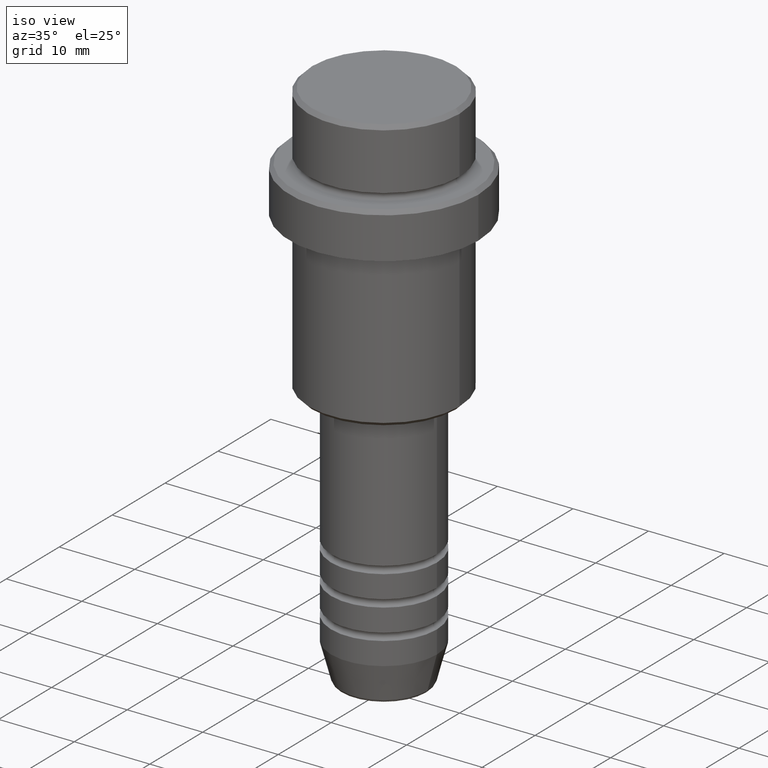
[diagram: clean part render]
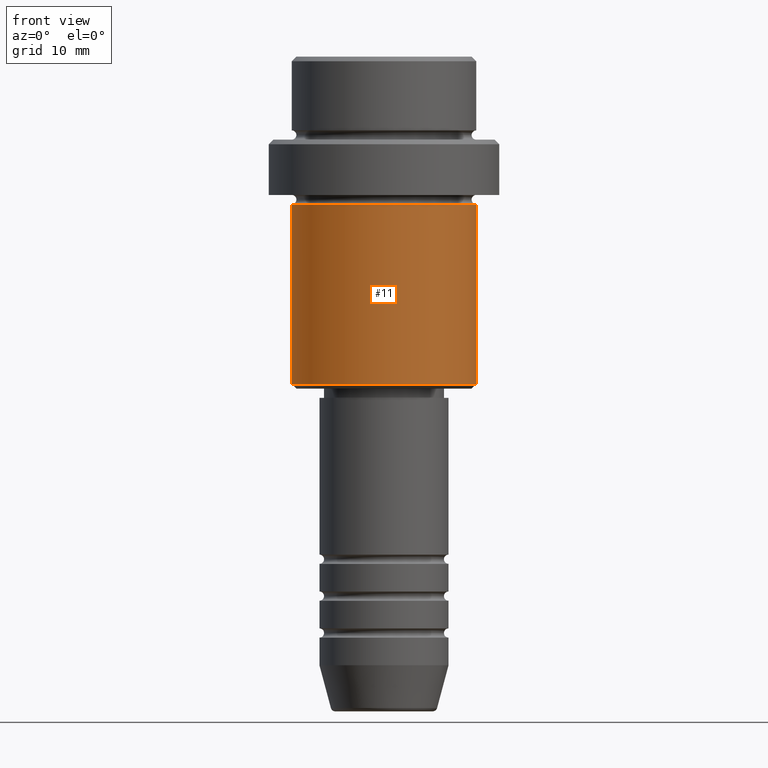
[diagram: tour spotlight — one face highlighted and labeled with its STEP entity id]
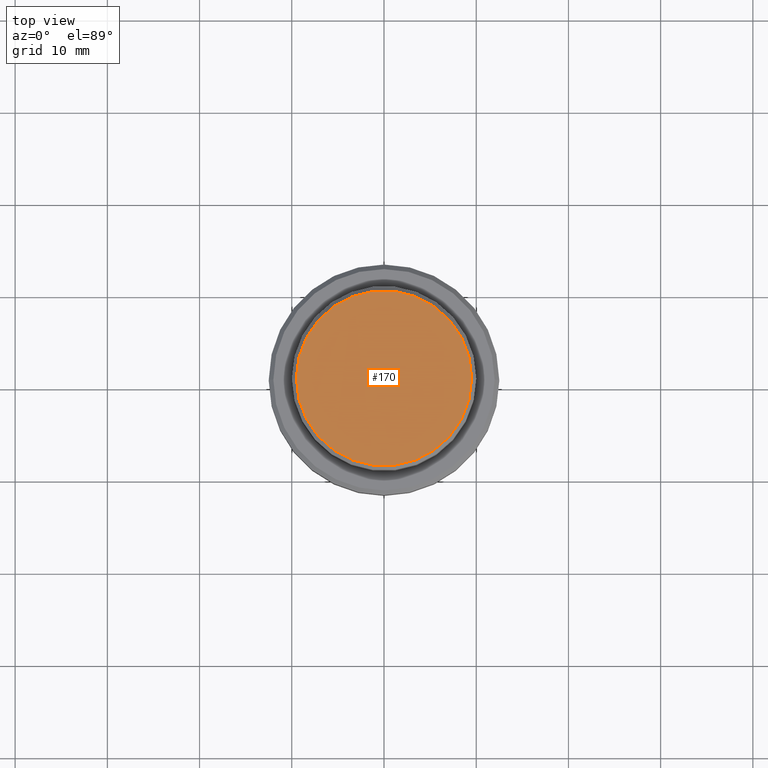
[diagram: tour spotlight — one face highlighted and labeled with its STEP entity id]
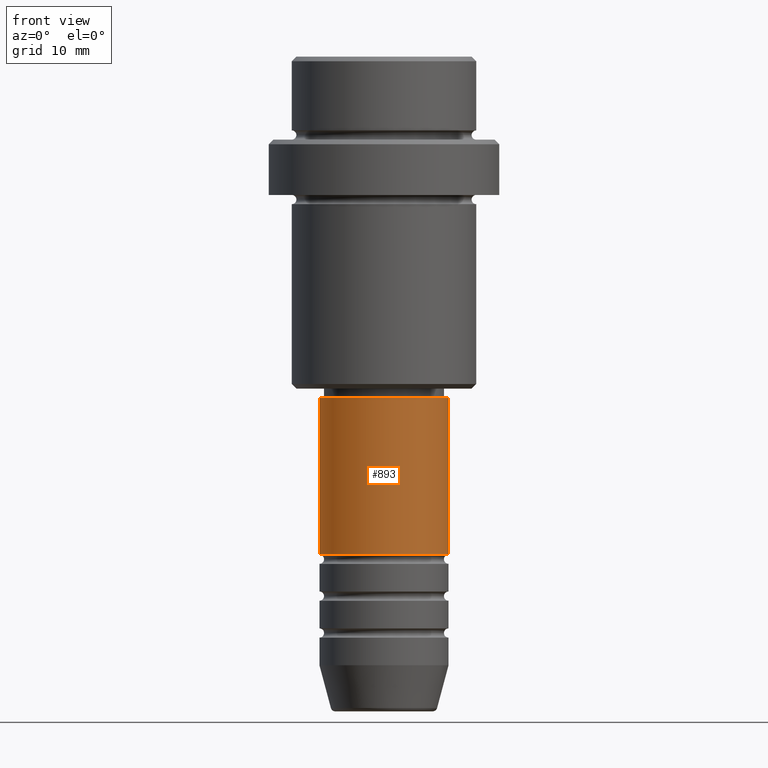
[diagram: tour spotlight — one face highlighted and labeled with its STEP entity id]
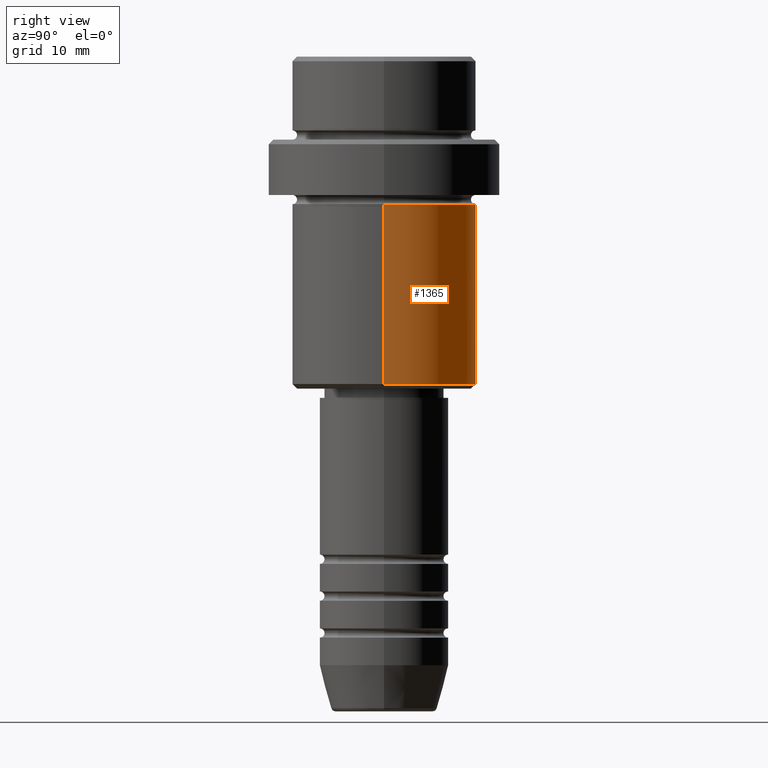
[diagram: tour spotlight — one face highlighted and labeled with its STEP entity id]
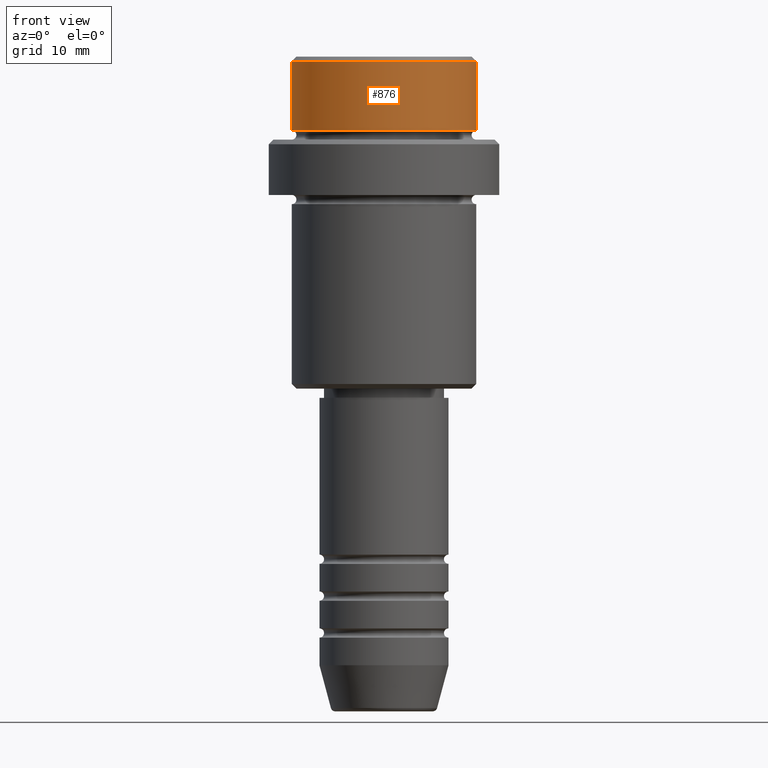
[diagram: tour spotlight — one face highlighted and labeled with its STEP entity id]
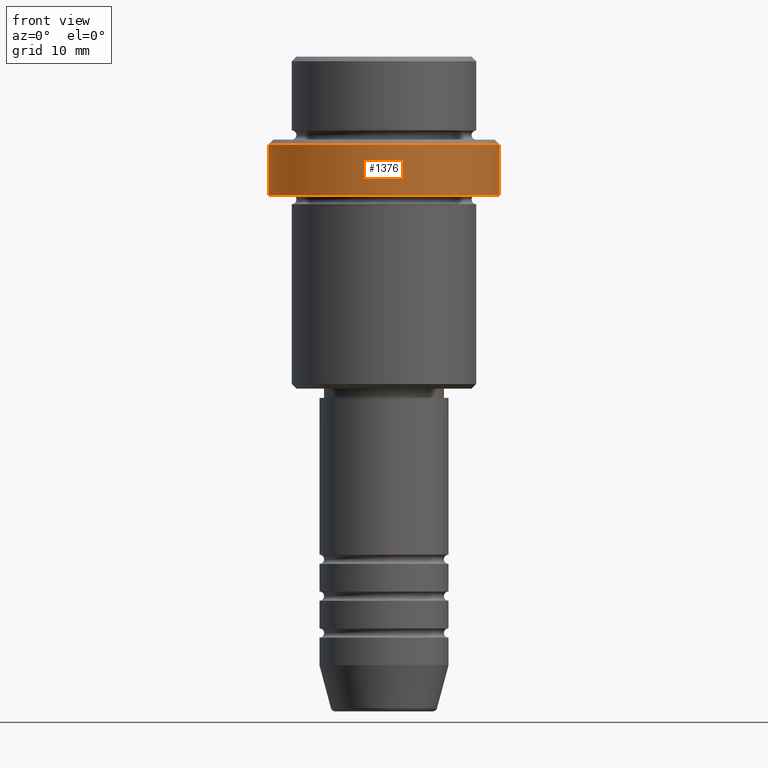
[diagram: tour spotlight — one face highlighted and labeled with its STEP entity id]
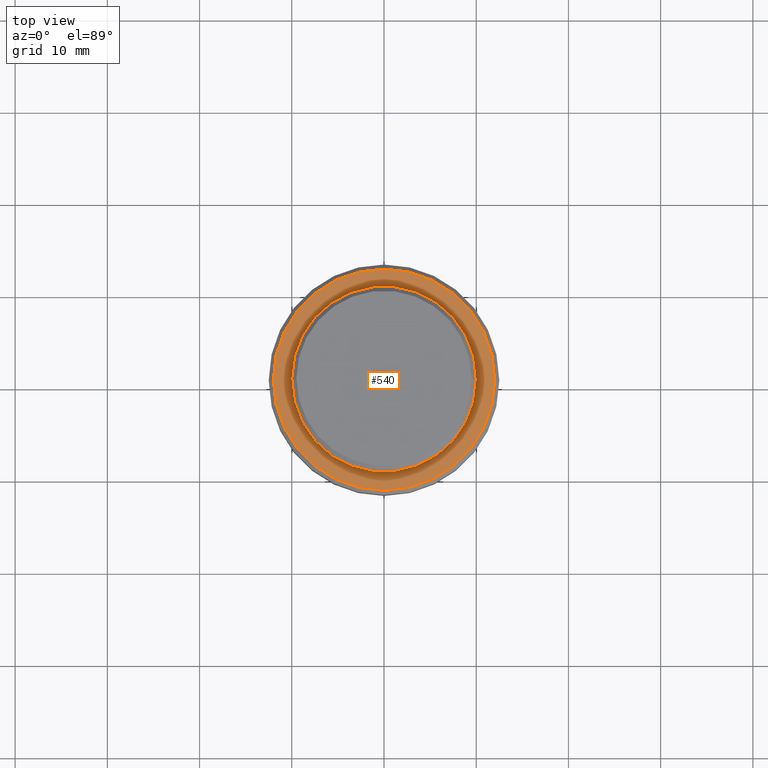
[diagram: tour spotlight — one face highlighted and labeled with its STEP entity id]
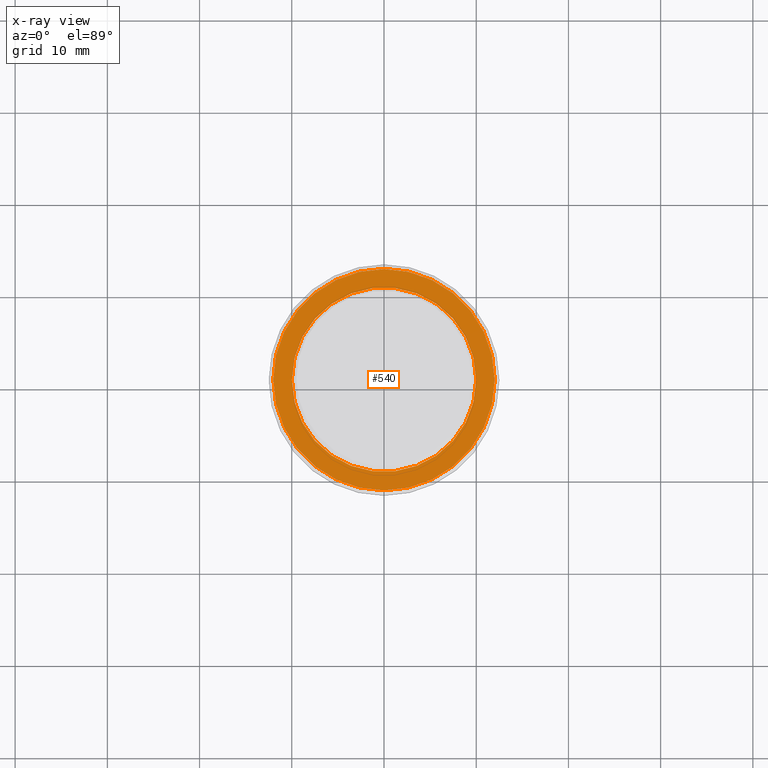
[diagram: x-ray of the same camera — body ghosted, this tour face saturated]
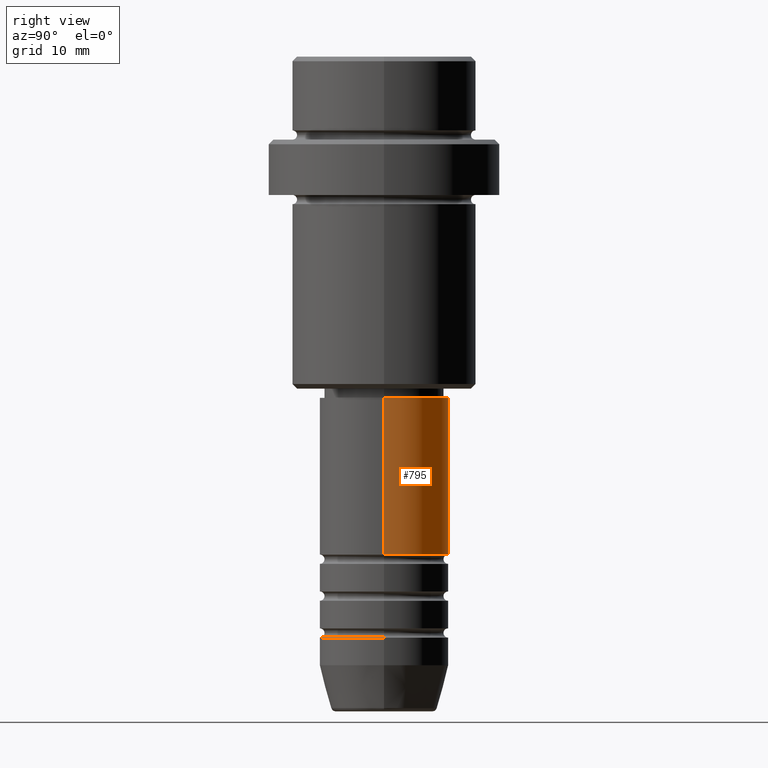
[diagram: tour spotlight — one face highlighted and labeled with its STEP entity id]
A machine part: a face-by-face anatomy tour. The part has 52 B-rep faces; the first image is the clean iso view, then the 8 largest visible faces are spotlighted one at a time (largest first), each with its STEP entity span.

Face 1 — front view, entity #11. In plain terms, the highlighted cylindrical surface (partial cylindrical patch) has radius 10 mm, axis along (-0, -0, 1).
Definition (entity closure, byte-faithful):
#11 = ADVANCED_FACE ( 'NONE', ( #933 ), #820, .T. ) ;
#33 = EDGE_CURVE ( 'NONE', #1302, #1058, #84, .T. ) ;
#84 = LINE ( 'NONE', #410, #741 ) ;
#130 = CARTESIAN_POINT ( 'NONE',  ( -10.00000000000000000, 1.224646799147353256E-15, -35.50000000000000711 ) ) ;
#183 = DIRECTION ( 'NONE',  ( -0.000000000000000000, -0.000000000000000000, 1.000000000000000000 ) ) ;
#186 = CARTESIAN_POINT ( 'NONE',  ( 10.00000000000000000, 0.000000000000000000, -35.50000000000000711 ) ) ;
#203 = LINE ( 'NONE', #641, #833 ) ;
#253 = VERTEX_POINT ( 'NONE', #130 ) ;
#299 = DIRECTION ( 'NONE',  ( -1.000000000000000000, 0.000000000000000000, 0.000000000000000000 ) ) ;
#304 = DIRECTION ( 'NONE',  ( -0.000000000000000000, -0.000000000000000000, 1.000000000000000000 ) ) ;
#395 = AXIS2_PLACEMENT_3D ( 'NONE', #720, #1266, #958 ) ;
#409 = CARTESIAN_POINT ( 'NONE',  ( 0.000000000000000000, 0.000000000000000000, -35.50000000000000711 ) ) ;
#410 = CARTESIAN_POINT ( 'NONE',  ( 10.00000000000000000, 0.000000000000000000, 0.000000000000000000 ) ) ;
#435 = ORIENTED_EDGE ( 'NONE', *, *, #602, .T. ) ;
#527 = DIRECTION ( 'NONE',  ( -0.000000000000000000, -0.000000000000000000, 1.000000000000000000 ) ) ;
#573 = ORIENTED_EDGE ( 'NONE', *, *, #1024, .F. ) ;
#602 = EDGE_CURVE ( 'NONE', #253, #1302, #1269, .T. ) ;
#629 = CARTESIAN_POINT ( 'NONE',  ( 10.00000000000000000, 0.000000000000000000, -16.00000000000000000 ) ) ;
#641 = CARTESIAN_POINT ( 'NONE',  ( -10.00000000000000000, 1.224646799147353256E-15, 0.000000000000000000 ) ) ;
#720 = CARTESIAN_POINT ( 'NONE',  ( 0.000000000000000000, 0.000000000000000000, 0.000000000000000000 ) ) ;
#741 = VECTOR ( 'NONE', #527, 1000.000000000000000 ) ;
#769 = EDGE_LOOP ( 'NONE', ( #1364, #435, #1034, #573 ) ) ;
#804 = AXIS2_PLACEMENT_3D ( 'NONE', #1059, #304, #1175 ) ;
#820 = CYLINDRICAL_SURFACE ( 'NONE', #395, 10.00000000000000000 ) ;
#833 = VECTOR ( 'NONE', #1081, 1000.000000000000000 ) ;
#914 = CARTESIAN_POINT ( 'NONE',  ( -10.00000000000000000, 1.224646799147353256E-15, -16.00000000000000000 ) ) ;
#933 = FACE_OUTER_BOUND ( 'NONE', #769, .T. ) ;
#958 = DIRECTION ( 'NONE',  ( 1.000000000000000000, 0.000000000000000000, 0.000000000000000000 ) ) ;
#1024 = EDGE_CURVE ( 'NONE', #1149, #1058, #1037, .T. ) ;
#1034 = ORIENTED_EDGE ( 'NONE', *, *, #33, .T. ) ;
#1037 = CIRCLE ( 'NONE', #804, 10.00000000000000000 ) ;
#1058 = VERTEX_POINT ( 'NONE', #629 ) ;
#1059 = CARTESIAN_POINT ( 'NONE',  ( 0.000000000000000000, 0.000000000000000000, -16.00000000000000000 ) ) ;
#1081 = DIRECTION ( 'NONE',  ( -0.000000000000000000, -0.000000000000000000, 1.000000000000000000 ) ) ;
#1149 = VERTEX_POINT ( 'NONE', #914 ) ;
#1175 = DIRECTION ( 'NONE',  ( 1.000000000000000000, 0.000000000000000000, 0.000000000000000000 ) ) ;
#1266 = DIRECTION ( 'NONE',  ( -0.000000000000000000, -0.000000000000000000, 1.000000000000000000 ) ) ;
#1269 = CIRCLE ( 'NONE', #1403, 10.00000000000000000 ) ;
#1302 = VERTEX_POINT ( 'NONE', #186 ) ;
#1342 = EDGE_CURVE ( 'NONE', #253, #1149, #203, .T. ) ;
#1364 = ORIENTED_EDGE ( 'NONE', *, *, #1342, .F. ) ;
#1403 = AXIS2_PLACEMENT_3D ( 'NONE', #409, #183, #299 ) ;

Face 2 — top view, entity #170. In plain terms, the highlighted planar face has unit normal (0, -0, 1).
Definition (entity closure, byte-faithful):
#109 = DIRECTION ( 'NONE',  ( -0.000000000000000000, -0.000000000000000000, 1.000000000000000000 ) ) ;
#111 = AXIS2_PLACEMENT_3D ( 'NONE', #219, #109, #1123 ) ;
#126 = CARTESIAN_POINT ( 'NONE',  ( 9.500000000000001776, 1.194030629168669469E-15, 0.000000000000000000 ) ) ;
#170 = ADVANCED_FACE ( 'NONE', ( #1217 ), #1311, .T. ) ;
#202 = CARTESIAN_POINT ( 'NONE',  ( 0.000000000000000000, 0.000000000000000000, 0.000000000000000000 ) ) ;
#215 = DIRECTION ( 'NONE',  ( 1.000000000000000000, 0.000000000000000000, 0.000000000000000000 ) ) ;
#219 = CARTESIAN_POINT ( 'NONE',  ( 0.000000000000000000, 0.000000000000000000, 0.000000000000000000 ) ) ;
#227 = DIRECTION ( 'NONE',  ( 0.000000000000000000, -0.000000000000000000, 1.000000000000000000 ) ) ;
#500 = CARTESIAN_POINT ( 'NONE',  ( -9.500000000000001776, 0.000000000000000000, 0.000000000000000000 ) ) ;
#532 = DIRECTION ( 'NONE',  ( -0.000000000000000000, -0.000000000000000000, 1.000000000000000000 ) ) ;
#535 = EDGE_LOOP ( 'NONE', ( #1122, #917 ) ) ;
#538 = CIRCLE ( 'NONE', #945, 9.500000000000001776 ) ;
#562 = CIRCLE ( 'NONE', #111, 9.500000000000001776 ) ;
#782 = AXIS2_PLACEMENT_3D ( 'NONE', #1082, #227, #215 ) ;
#803 = EDGE_CURVE ( 'NONE', #812, #988, #562, .T. ) ;
#812 = VERTEX_POINT ( 'NONE', #126 ) ;
#917 = ORIENTED_EDGE ( 'NONE', *, *, #803, .T. ) ;
#945 = AXIS2_PLACEMENT_3D ( 'NONE', #202, #532, #1405 ) ;
#988 = VERTEX_POINT ( 'NONE', #500 ) ;
#991 = EDGE_CURVE ( 'NONE', #988, #812, #538, .T. ) ;
#1082 = CARTESIAN_POINT ( 'NONE',  ( 0.000000000000000000, 0.000000000000000000, 0.000000000000000000 ) ) ;
#1122 = ORIENTED_EDGE ( 'NONE', *, *, #991, .T. ) ;
#1123 = DIRECTION ( 'NONE',  ( 1.000000000000000000, 0.000000000000000000, 0.000000000000000000 ) ) ;
#1217 = FACE_OUTER_BOUND ( 'NONE', #535, .T. ) ;
#1311 = PLANE ( 'NONE',  #782 ) ;
#1405 = DIRECTION ( 'NONE',  ( 1.000000000000000000, 0.000000000000000000, 0.000000000000000000 ) ) ;

Face 3 — front view, entity #893. In plain terms, the highlighted cylindrical surface (partial cylindrical patch) has radius 7 mm, axis along (-0, -0, 1).
Definition (entity closure, byte-faithful):
#100 = CYLINDRICAL_SURFACE ( 'NONE', #977, 7.000000000000000000 ) ;
#122 = DIRECTION ( 'NONE',  ( -0.000000000000000000, -0.000000000000000000, 1.000000000000000000 ) ) ;
#169 = VERTEX_POINT ( 'NONE', #1325 ) ;
#191 = AXIS2_PLACEMENT_3D ( 'NONE', #777, #905, #1332 ) ;
#225 = EDGE_LOOP ( 'NONE', ( #1289, #432, #1158, #257 ) ) ;
#236 = CIRCLE ( 'NONE', #191, 7.000000000000000000 ) ;
#257 = ORIENTED_EDGE ( 'NONE', *, *, #1160, .F. ) ;
#258 = VECTOR ( 'NONE', #694, 1000.000000000000000 ) ;
#273 = VERTEX_POINT ( 'NONE', #1346 ) ;
#340 = LINE ( 'NONE', #1244, #258 ) ;
#359 = EDGE_CURVE ( 'NONE', #446, #273, #340, .T. ) ;
#425 = VERTEX_POINT ( 'NONE', #1391 ) ;
#432 = ORIENTED_EDGE ( 'NONE', *, *, #1232, .T. ) ;
#444 = CIRCLE ( 'NONE', #1249, 7.000000000000000000 ) ;
#446 = VERTEX_POINT ( 'NONE', #955 ) ;
#518 = LINE ( 'NONE', #526, #1063 ) ;
#526 = CARTESIAN_POINT ( 'NONE',  ( -7.000000000000000000, 8.572527594031473190E-16, 0.000000000000000000 ) ) ;
#543 = CARTESIAN_POINT ( 'NONE',  ( 0.000000000000000000, 0.000000000000000000, 0.000000000000000000 ) ) ;
#694 = DIRECTION ( 'NONE',  ( -0.000000000000000000, -0.000000000000000000, 1.000000000000000000 ) ) ;
#777 = CARTESIAN_POINT ( 'NONE',  ( 0.000000000000000000, 0.000000000000000000, -53.99999999999988631 ) ) ;
#893 = ADVANCED_FACE ( 'NONE', ( #985 ), #100, .T. ) ;
#905 = DIRECTION ( 'NONE',  ( -0.000000000000000000, -0.000000000000000000, 1.000000000000000000 ) ) ;
#955 = CARTESIAN_POINT ( 'NONE',  ( 7.000000000000000000, 0.000000000000000000, -53.99999999999988631 ) ) ;
#977 = AXIS2_PLACEMENT_3D ( 'NONE', #543, #1415, #1077 ) ;
#985 = FACE_OUTER_BOUND ( 'NONE', #225, .T. ) ;
#1063 = VECTOR ( 'NONE', #1118, 1000.000000000000000 ) ;
#1077 = DIRECTION ( 'NONE',  ( 1.000000000000000000, 0.000000000000000000, 0.000000000000000000 ) ) ;
#1118 = DIRECTION ( 'NONE',  ( -0.000000000000000000, -0.000000000000000000, 1.000000000000000000 ) ) ;
#1148 = EDGE_CURVE ( 'NONE', #425, #169, #518, .T. ) ;
#1158 = ORIENTED_EDGE ( 'NONE', *, *, #359, .T. ) ;
#1160 = EDGE_CURVE ( 'NONE', #169, #273, #444, .T. ) ;
#1232 = EDGE_CURVE ( 'NONE', #425, #446, #236, .T. ) ;
#1235 = DIRECTION ( 'NONE',  ( 1.000000000000000000, 0.000000000000000000, 0.000000000000000000 ) ) ;
#1244 = CARTESIAN_POINT ( 'NONE',  ( 7.000000000000000000, 0.000000000000000000, 0.000000000000000000 ) ) ;
#1249 = AXIS2_PLACEMENT_3D ( 'NONE', #1338, #122, #1235 ) ;
#1289 = ORIENTED_EDGE ( 'NONE', *, *, #1148, .F. ) ;
#1325 = CARTESIAN_POINT ( 'NONE',  ( -7.000000000000000000, 8.572527594031473190E-16, -37.00000000000000000 ) ) ;
#1332 = DIRECTION ( 'NONE',  ( 1.000000000000000000, 0.000000000000000000, 0.000000000000000000 ) ) ;
#1338 = CARTESIAN_POINT ( 'NONE',  ( 0.000000000000000000, 0.000000000000000000, -37.00000000000000000 ) ) ;
#1346 = CARTESIAN_POINT ( 'NONE',  ( 7.000000000000000000, 0.000000000000000000, -37.00000000000000000 ) ) ;
#1391 = CARTESIAN_POINT ( 'NONE',  ( -7.000000000000000000, 8.572527594031473190E-16, -53.99999999999988631 ) ) ;
#1415 = DIRECTION ( 'NONE',  ( -0.000000000000000000, -0.000000000000000000, 1.000000000000000000 ) ) ;

Face 4 — right view, entity #1365. In plain terms, the highlighted cylindrical surface (partial cylindrical patch) has radius 10 mm, axis along (-0, -0, 1).
Definition (entity closure, byte-faithful):
#7 = DIRECTION ( 'NONE',  ( 1.000000000000000000, 0.000000000000000000, 0.000000000000000000 ) ) ;
#13 = DIRECTION ( 'NONE',  ( -0.000000000000000000, -0.000000000000000000, 1.000000000000000000 ) ) ;
#33 = EDGE_CURVE ( 'NONE', #1302, #1058, #84, .T. ) ;
#40 = DIRECTION ( 'NONE',  ( 1.000000000000000000, 0.000000000000000000, 0.000000000000000000 ) ) ;
#84 = LINE ( 'NONE', #410, #741 ) ;
#129 = EDGE_CURVE ( 'NONE', #1058, #1149, #308, .T. ) ;
#130 = CARTESIAN_POINT ( 'NONE',  ( -10.00000000000000000, 1.224646799147353256E-15, -35.50000000000000711 ) ) ;
#141 = DIRECTION ( 'NONE',  ( -0.000000000000000000, -0.000000000000000000, 1.000000000000000000 ) ) ;
#186 = CARTESIAN_POINT ( 'NONE',  ( 10.00000000000000000, 0.000000000000000000, -35.50000000000000711 ) ) ;
#203 = LINE ( 'NONE', #641, #833 ) ;
#221 = EDGE_LOOP ( 'NONE', ( #1231, #1065, #800, #1026 ) ) ;
#253 = VERTEX_POINT ( 'NONE', #130 ) ;
#308 = CIRCLE ( 'NONE', #805, 10.00000000000000000 ) ;
#355 = CARTESIAN_POINT ( 'NONE',  ( 0.000000000000000000, 0.000000000000000000, -35.50000000000000711 ) ) ;
#379 = EDGE_CURVE ( 'NONE', #1302, #253, #1041, .T. ) ;
#410 = CARTESIAN_POINT ( 'NONE',  ( 10.00000000000000000, 0.000000000000000000, 0.000000000000000000 ) ) ;
#450 = AXIS2_PLACEMENT_3D ( 'NONE', #355, #13, #567 ) ;
#513 = AXIS2_PLACEMENT_3D ( 'NONE', #1243, #141, #40 ) ;
#527 = DIRECTION ( 'NONE',  ( -0.000000000000000000, -0.000000000000000000, 1.000000000000000000 ) ) ;
#567 = DIRECTION ( 'NONE',  ( -1.000000000000000000, 0.000000000000000000, 0.000000000000000000 ) ) ;
#629 = CARTESIAN_POINT ( 'NONE',  ( 10.00000000000000000, 0.000000000000000000, -16.00000000000000000 ) ) ;
#641 = CARTESIAN_POINT ( 'NONE',  ( -10.00000000000000000, 1.224646799147353256E-15, 0.000000000000000000 ) ) ;
#655 = CYLINDRICAL_SURFACE ( 'NONE', #513, 10.00000000000000000 ) ;
#741 = VECTOR ( 'NONE', #527, 1000.000000000000000 ) ;
#800 = ORIENTED_EDGE ( 'NONE', *, *, #129, .F. ) ;
#805 = AXIS2_PLACEMENT_3D ( 'NONE', #1193, #1212, #7 ) ;
#833 = VECTOR ( 'NONE', #1081, 1000.000000000000000 ) ;
#914 = CARTESIAN_POINT ( 'NONE',  ( -10.00000000000000000, 1.224646799147353256E-15, -16.00000000000000000 ) ) ;
#1026 = ORIENTED_EDGE ( 'NONE', *, *, #33, .F. ) ;
#1041 = CIRCLE ( 'NONE', #450, 10.00000000000000000 ) ;
#1058 = VERTEX_POINT ( 'NONE', #629 ) ;
#1065 = ORIENTED_EDGE ( 'NONE', *, *, #1342, .T. ) ;
#1081 = DIRECTION ( 'NONE',  ( -0.000000000000000000, -0.000000000000000000, 1.000000000000000000 ) ) ;
#1149 = VERTEX_POINT ( 'NONE', #914 ) ;
#1193 = CARTESIAN_POINT ( 'NONE',  ( 0.000000000000000000, 0.000000000000000000, -16.00000000000000000 ) ) ;
#1203 = FACE_OUTER_BOUND ( 'NONE', #221, .T. ) ;
#1212 = DIRECTION ( 'NONE',  ( -0.000000000000000000, -0.000000000000000000, 1.000000000000000000 ) ) ;
#1231 = ORIENTED_EDGE ( 'NONE', *, *, #379, .T. ) ;
#1243 = CARTESIAN_POINT ( 'NONE',  ( 0.000000000000000000, 0.000000000000000000, 0.000000000000000000 ) ) ;
#1302 = VERTEX_POINT ( 'NONE', #186 ) ;
#1342 = EDGE_CURVE ( 'NONE', #253, #1149, #203, .T. ) ;
#1365 = ADVANCED_FACE ( 'NONE', ( #1203 ), #655, .T. ) ;

Face 5 — front view, entity #876. In plain terms, the highlighted cylindrical surface (partial cylindrical patch) has radius 10 mm, axis along (-0, -0, 1).
Definition (entity closure, byte-faithful):
#68 = LINE ( 'NONE', #200, #1021 ) ;
#70 = AXIS2_PLACEMENT_3D ( 'NONE', #430, #870, #1284 ) ;
#82 = LINE ( 'NONE', #415, #671 ) ;
#124 = CARTESIAN_POINT ( 'NONE',  ( 9.999999999999998224, 0.000000000000000000, -0.5000000000000038858 ) ) ;
#200 = CARTESIAN_POINT ( 'NONE',  ( 9.999999999999998224, 0.000000000000000000, 0.000000000000000000 ) ) ;
#284 = DIRECTION ( 'NONE',  ( 0.000000000000000000, 0.000000000000000000, -1.000000000000000000 ) ) ;
#377 = DIRECTION ( 'NONE',  ( -0.000000000000000000, -0.000000000000000000, 1.000000000000000000 ) ) ;
#396 = AXIS2_PLACEMENT_3D ( 'NONE', #1012, #1120, #786 ) ;
#411 = FACE_OUTER_BOUND ( 'NONE', #1200, .T. ) ;
#412 = VERTEX_POINT ( 'NONE', #124 ) ;
#415 = CARTESIAN_POINT ( 'NONE',  ( -9.999999999999998224, 1.224646799147353059E-15, 0.000000000000000000 ) ) ;
#430 = CARTESIAN_POINT ( 'NONE',  ( 0.000000000000000000, 0.000000000000000000, 0.000000000000000000 ) ) ;
#525 = DIRECTION ( 'NONE',  ( -0.000000000000000000, -0.000000000000000000, 1.000000000000000000 ) ) ;
#564 = EDGE_CURVE ( 'NONE', #664, #1218, #82, .T. ) ;
#582 = ORIENTED_EDGE ( 'NONE', *, *, #1030, .T. ) ;
#664 = VERTEX_POINT ( 'NONE', #699 ) ;
#671 = VECTOR ( 'NONE', #525, 1000.000000000000000 ) ;
#678 = CARTESIAN_POINT ( 'NONE',  ( 9.999999999999998224, 0.000000000000000000, -7.999999999999998224 ) ) ;
#699 = CARTESIAN_POINT ( 'NONE',  ( -9.999999999999998224, 1.224646799147353059E-15, -7.999999999999998224 ) ) ;
#742 = DIRECTION ( 'NONE',  ( 1.000000000000000000, 0.000000000000000000, 0.000000000000000000 ) ) ;
#754 = ORIENTED_EDGE ( 'NONE', *, *, #895, .T. ) ;
#786 = DIRECTION ( 'NONE',  ( 1.000000000000000000, 0.000000000000000000, 0.000000000000000000 ) ) ;
#793 = VERTEX_POINT ( 'NONE', #678 ) ;
#870 = DIRECTION ( 'NONE',  ( -0.000000000000000000, -0.000000000000000000, 1.000000000000000000 ) ) ;
#876 = ADVANCED_FACE ( 'NONE', ( #411 ), #1194, .T. ) ;
#894 = ORIENTED_EDGE ( 'NONE', *, *, #564, .F. ) ;
#895 = EDGE_CURVE ( 'NONE', #412, #1218, #1270, .T. ) ;
#1012 = CARTESIAN_POINT ( 'NONE',  ( 0.000000000000000000, 0.000000000000000000, -7.999999999999998224 ) ) ;
#1016 = CARTESIAN_POINT ( 'NONE',  ( -9.999999999999998224, 1.224646799147353059E-15, -0.5000000000000038858 ) ) ;
#1021 = VECTOR ( 'NONE', #377, 1000.000000000000000 ) ;
#1030 = EDGE_CURVE ( 'NONE', #793, #412, #68, .T. ) ;
#1120 = DIRECTION ( 'NONE',  ( -0.000000000000000000, -0.000000000000000000, 1.000000000000000000 ) ) ;
#1181 = AXIS2_PLACEMENT_3D ( 'NONE', #1278, #284, #742 ) ;
#1194 = CYLINDRICAL_SURFACE ( 'NONE', #70, 9.999999999999998224 ) ;
#1200 = EDGE_LOOP ( 'NONE', ( #894, #1308, #582, #754 ) ) ;
#1216 = EDGE_CURVE ( 'NONE', #664, #793, #1227, .T. ) ;
#1218 = VERTEX_POINT ( 'NONE', #1016 ) ;
#1227 = CIRCLE ( 'NONE', #396, 9.999999999999998224 ) ;
#1270 = CIRCLE ( 'NONE', #1181, 9.999999999999998224 ) ;
#1278 = CARTESIAN_POINT ( 'NONE',  ( 0.000000000000000000, 0.000000000000000000, -0.5000000000000038858 ) ) ;
#1284 = DIRECTION ( 'NONE',  ( 1.000000000000000000, 0.000000000000000000, 0.000000000000000000 ) ) ;
#1308 = ORIENTED_EDGE ( 'NONE', *, *, #1216, .T. ) ;

Face 6 — front view, entity #1376. In plain terms, the highlighted cylindrical surface (partial cylindrical patch) has radius 12.5 mm, axis along (-0, -0, 1).
Definition (entity closure, byte-faithful):
#9 = VERTEX_POINT ( 'NONE', #75 ) ;
#74 = CIRCLE ( 'NONE', #925, 12.50000000000000000 ) ;
#75 = CARTESIAN_POINT ( 'NONE',  ( 12.50000000000000000, 0.000000000000000000, -15.00000000000000178 ) ) ;
#153 = EDGE_CURVE ( 'NONE', #1214, #778, #1105, .T. ) ;
#158 = ORIENTED_EDGE ( 'NONE', *, *, #434, .T. ) ;
#234 = LINE ( 'NONE', #246, #1208 ) ;
#246 = CARTESIAN_POINT ( 'NONE',  ( 12.50000000000000000, 0.000000000000000000, 0.000000000000000000 ) ) ;
#347 = CARTESIAN_POINT ( 'NONE',  ( -12.50000000000000000, 1.530808498934191521E-15, -9.500000000000000000 ) ) ;
#365 = VERTEX_POINT ( 'NONE', #588 ) ;
#434 = EDGE_CURVE ( 'NONE', #1214, #9, #74, .T. ) ;
#467 = AXIS2_PLACEMENT_3D ( 'NONE', #1083, #869, #874 ) ;
#475 = DIRECTION ( 'NONE',  ( -0.000000000000000000, -0.000000000000000000, 1.000000000000000000 ) ) ;
#561 = CARTESIAN_POINT ( 'NONE',  ( -12.50000000000000000, 1.530808498934191521E-15, 0.000000000000000000 ) ) ;
#588 = CARTESIAN_POINT ( 'NONE',  ( 12.50000000000000000, 0.000000000000000000, -9.500000000000000000 ) ) ;
#597 = VECTOR ( 'NONE', #989, 1000.000000000000000 ) ;
#772 = CARTESIAN_POINT ( 'NONE',  ( -12.50000000000000000, 1.530808498934191521E-15, -15.00000000000000178 ) ) ;
#778 = VERTEX_POINT ( 'NONE', #347 ) ;
#779 = CARTESIAN_POINT ( 'NONE',  ( 0.000000000000000000, 0.000000000000000000, 0.000000000000000000 ) ) ;
#794 = CYLINDRICAL_SURFACE ( 'NONE', #1408, 12.50000000000000000 ) ;
#837 = DIRECTION ( 'NONE',  ( -0.000000000000000000, -0.000000000000000000, 1.000000000000000000 ) ) ;
#850 = EDGE_LOOP ( 'NONE', ( #1197, #158, #1334, #1262 ) ) ;
#869 = DIRECTION ( 'NONE',  ( 0.000000000000000000, 0.000000000000000000, -1.000000000000000000 ) ) ;
#874 = DIRECTION ( 'NONE',  ( 1.000000000000000000, 0.000000000000000000, 0.000000000000000000 ) ) ;
#925 = AXIS2_PLACEMENT_3D ( 'NONE', #1280, #837, #1062 ) ;
#989 = DIRECTION ( 'NONE',  ( -0.000000000000000000, -0.000000000000000000, 1.000000000000000000 ) ) ;
#990 = DIRECTION ( 'NONE',  ( -0.000000000000000000, -0.000000000000000000, 1.000000000000000000 ) ) ;
#1062 = DIRECTION ( 'NONE',  ( 1.000000000000000000, 0.000000000000000000, 0.000000000000000000 ) ) ;
#1083 = CARTESIAN_POINT ( 'NONE',  ( 0.000000000000000000, 0.000000000000000000, -9.500000000000000000 ) ) ;
#1105 = LINE ( 'NONE', #561, #597 ) ;
#1197 = ORIENTED_EDGE ( 'NONE', *, *, #153, .F. ) ;
#1208 = VECTOR ( 'NONE', #990, 1000.000000000000000 ) ;
#1214 = VERTEX_POINT ( 'NONE', #772 ) ;
#1240 = DIRECTION ( 'NONE',  ( 1.000000000000000000, 0.000000000000000000, 0.000000000000000000 ) ) ;
#1242 = EDGE_CURVE ( 'NONE', #9, #365, #234, .T. ) ;
#1250 = CIRCLE ( 'NONE', #467, 12.50000000000000000 ) ;
#1252 = FACE_OUTER_BOUND ( 'NONE', #850, .T. ) ;
#1262 = ORIENTED_EDGE ( 'NONE', *, *, #1322, .T. ) ;
#1280 = CARTESIAN_POINT ( 'NONE',  ( 0.000000000000000000, 0.000000000000000000, -15.00000000000000178 ) ) ;
#1322 = EDGE_CURVE ( 'NONE', #365, #778, #1250, .T. ) ;
#1334 = ORIENTED_EDGE ( 'NONE', *, *, #1242, .T. ) ;
#1376 = ADVANCED_FACE ( 'NONE', ( #1252 ), #794, .T. ) ;
#1408 = AXIS2_PLACEMENT_3D ( 'NONE', #779, #475, #1240 ) ;

Face 7 — top view, entity #540. An x-ray twin of the same camera follows (body ghosted, this face saturated) — the face is partly hidden behind the body. In plain terms, the highlighted planar face has unit normal (0, -0, 1).
Definition (entity closure, byte-faithful):
#10 = AXIS2_PLACEMENT_3D ( 'NONE', #1366, #1258, #609 ) ;
#48 = CARTESIAN_POINT ( 'NONE',  ( 0.000000000000000000, 9.499999999999994671, -9.000000000000001776 ) ) ;
#163 = AXIS2_PLACEMENT_3D ( 'NONE', #48, #1381, #494 ) ;
#189 = AXIS2_PLACEMENT_3D ( 'NONE', #383, #714, #1159 ) ;
#207 = DIRECTION ( 'NONE',  ( -0.000000000000000000, -0.000000000000000000, 1.000000000000000000 ) ) ;
#338 = EDGE_LOOP ( 'NONE', ( #1051, #495 ) ) ;
#354 = ORIENTED_EDGE ( 'NONE', *, *, #1328, .T. ) ;
#363 = CARTESIAN_POINT ( 'NONE',  ( -9.999999999999994671, 1.224646799147352665E-15, -9.000000000000001776 ) ) ;
#383 = CARTESIAN_POINT ( 'NONE',  ( 0.000000000000000000, 0.000000000000000000, -9.000000000000001776 ) ) ;
#423 = CIRCLE ( 'NONE', #654, 12.00000000000000355 ) ;
#451 = DIRECTION ( 'NONE',  ( 1.000000000000000000, 0.000000000000000000, 0.000000000000000000 ) ) ;
#464 = CIRCLE ( 'NONE', #189, 9.999999999999994671 ) ;
#494 = DIRECTION ( 'NONE',  ( 1.000000000000000000, 0.000000000000000000, 0.000000000000000000 ) ) ;
#495 = ORIENTED_EDGE ( 'NONE', *, *, #1100, .T. ) ;
#499 = EDGE_CURVE ( 'NONE', #816, #581, #599, .T. ) ;
#540 = ADVANCED_FACE ( 'NONE', ( #1146, #593 ), #1039, .T. ) ;
#548 = DIRECTION ( 'NONE',  ( 1.000000000000000000, 0.000000000000000000, 0.000000000000000000 ) ) ;
#581 = VERTEX_POINT ( 'NONE', #363 ) ;
#593 = FACE_BOUND ( 'NONE', #338, .T. ) ;
#599 = CIRCLE ( 'NONE', #10, 9.999999999999994671 ) ;
#606 = CARTESIAN_POINT ( 'NONE',  ( 9.999999999999994671, 0.000000000000000000, -9.000000000000001776 ) ) ;
#609 = DIRECTION ( 'NONE',  ( 1.000000000000000000, 0.000000000000000000, 0.000000000000000000 ) ) ;
#646 = CARTESIAN_POINT ( 'NONE',  ( 12.00000000000000355, 1.500192328955507734E-15, -9.000000000000001776 ) ) ;
#654 = AXIS2_PLACEMENT_3D ( 'NONE', #1096, #956, #548 ) ;
#682 = EDGE_LOOP ( 'NONE', ( #354, #875 ) ) ;
#693 = VERTEX_POINT ( 'NONE', #646 ) ;
#714 = DIRECTION ( 'NONE',  ( 0.000000000000000000, 0.000000000000000000, -1.000000000000000000 ) ) ;
#740 = AXIS2_PLACEMENT_3D ( 'NONE', #1171, #207, #451 ) ;
#816 = VERTEX_POINT ( 'NONE', #606 ) ;
#875 = ORIENTED_EDGE ( 'NONE', *, *, #1182, .T. ) ;
#956 = DIRECTION ( 'NONE',  ( -0.000000000000000000, -0.000000000000000000, 1.000000000000000000 ) ) ;
#1039 = PLANE ( 'NONE',  #163 ) ;
#1051 = ORIENTED_EDGE ( 'NONE', *, *, #499, .T. ) ;
#1053 = CARTESIAN_POINT ( 'NONE',  ( -12.00000000000000355, 0.000000000000000000, -9.000000000000001776 ) ) ;
#1096 = CARTESIAN_POINT ( 'NONE',  ( 0.000000000000000000, 0.000000000000000000, -9.000000000000001776 ) ) ;
#1100 = EDGE_CURVE ( 'NONE', #581, #816, #464, .T. ) ;
#1146 = FACE_OUTER_BOUND ( 'NONE', #682, .T. ) ;
#1159 = DIRECTION ( 'NONE',  ( 1.000000000000000000, 0.000000000000000000, 0.000000000000000000 ) ) ;
#1171 = CARTESIAN_POINT ( 'NONE',  ( 0.000000000000000000, 0.000000000000000000, -9.000000000000001776 ) ) ;
#1182 = EDGE_CURVE ( 'NONE', #693, #1304, #1356, .T. ) ;
#1258 = DIRECTION ( 'NONE',  ( 0.000000000000000000, 0.000000000000000000, -1.000000000000000000 ) ) ;
#1304 = VERTEX_POINT ( 'NONE', #1053 ) ;
#1328 = EDGE_CURVE ( 'NONE', #1304, #693, #423, .T. ) ;
#1356 = CIRCLE ( 'NONE', #740, 12.00000000000000355 ) ;
#1366 = CARTESIAN_POINT ( 'NONE',  ( 0.000000000000000000, 0.000000000000000000, -9.000000000000001776 ) ) ;
#1381 = DIRECTION ( 'NONE',  ( 0.000000000000000000, -0.000000000000000000, 1.000000000000000000 ) ) ;

Face 8 — right view, entity #795. In plain terms, the highlighted cylindrical surface (partial cylindrical patch) has radius 7 mm, axis along (-0, -0, 1).
Definition (entity closure, byte-faithful):
#36 = DIRECTION ( 'NONE',  ( 1.000000000000000000, 0.000000000000000000, 0.000000000000000000 ) ) ;
#166 = CARTESIAN_POINT ( 'NONE',  ( 0.000000000000000000, 0.000000000000000000, -53.99999999999988631 ) ) ;
#169 = VERTEX_POINT ( 'NONE', #1325 ) ;
#172 = DIRECTION ( 'NONE',  ( -0.000000000000000000, -0.000000000000000000, 1.000000000000000000 ) ) ;
#216 = AXIS2_PLACEMENT_3D ( 'NONE', #964, #594, #36 ) ;
#258 = VECTOR ( 'NONE', #694, 1000.000000000000000 ) ;
#273 = VERTEX_POINT ( 'NONE', #1346 ) ;
#279 = CIRCLE ( 'NONE', #216, 7.000000000000000000 ) ;
#300 = EDGE_LOOP ( 'NONE', ( #1078, #986, #992, #1341 ) ) ;
#340 = LINE ( 'NONE', #1244, #258 ) ;
#353 = DIRECTION ( 'NONE',  ( 1.000000000000000000, 0.000000000000000000, 0.000000000000000000 ) ) ;
#359 = EDGE_CURVE ( 'NONE', #446, #273, #340, .T. ) ;
#417 = DIRECTION ( 'NONE',  ( 1.000000000000000000, 0.000000000000000000, 0.000000000000000000 ) ) ;
#425 = VERTEX_POINT ( 'NONE', #1391 ) ;
#446 = VERTEX_POINT ( 'NONE', #955 ) ;
#485 = CIRCLE ( 'NONE', #1293, 7.000000000000000000 ) ;
#518 = LINE ( 'NONE', #526, #1063 ) ;
#526 = CARTESIAN_POINT ( 'NONE',  ( -7.000000000000000000, 8.572527594031473190E-16, 0.000000000000000000 ) ) ;
#570 = EDGE_CURVE ( 'NONE', #273, #169, #279, .T. ) ;
#594 = DIRECTION ( 'NONE',  ( -0.000000000000000000, -0.000000000000000000, 1.000000000000000000 ) ) ;
#639 = EDGE_CURVE ( 'NONE', #446, #425, #485, .T. ) ;
#694 = DIRECTION ( 'NONE',  ( -0.000000000000000000, -0.000000000000000000, 1.000000000000000000 ) ) ;
#795 = ADVANCED_FACE ( 'NONE', ( #1215 ), #1104, .T. ) ;
#955 = CARTESIAN_POINT ( 'NONE',  ( 7.000000000000000000, 0.000000000000000000, -53.99999999999988631 ) ) ;
#964 = CARTESIAN_POINT ( 'NONE',  ( 0.000000000000000000, 0.000000000000000000, -37.00000000000000000 ) ) ;
#986 = ORIENTED_EDGE ( 'NONE', *, *, #1148, .T. ) ;
#992 = ORIENTED_EDGE ( 'NONE', *, *, #570, .F. ) ;
#1003 = DIRECTION ( 'NONE',  ( -0.000000000000000000, -0.000000000000000000, 1.000000000000000000 ) ) ;
#1063 = VECTOR ( 'NONE', #1118, 1000.000000000000000 ) ;
#1078 = ORIENTED_EDGE ( 'NONE', *, *, #639, .T. ) ;
#1104 = CYLINDRICAL_SURFACE ( 'NONE', #1187, 7.000000000000000000 ) ;
#1118 = DIRECTION ( 'NONE',  ( -0.000000000000000000, -0.000000000000000000, 1.000000000000000000 ) ) ;
#1148 = EDGE_CURVE ( 'NONE', #425, #169, #518, .T. ) ;
#1187 = AXIS2_PLACEMENT_3D ( 'NONE', #1343, #1003, #353 ) ;
#1215 = FACE_OUTER_BOUND ( 'NONE', #300, .T. ) ;
#1244 = CARTESIAN_POINT ( 'NONE',  ( 7.000000000000000000, 0.000000000000000000, 0.000000000000000000 ) ) ;
#1293 = AXIS2_PLACEMENT_3D ( 'NONE', #166, #172, #417 ) ;
#1325 = CARTESIAN_POINT ( 'NONE',  ( -7.000000000000000000, 8.572527594031473190E-16, -37.00000000000000000 ) ) ;
#1341 = ORIENTED_EDGE ( 'NONE', *, *, #359, .F. ) ;
#1343 = CARTESIAN_POINT ( 'NONE',  ( 0.000000000000000000, 0.000000000000000000, 0.000000000000000000 ) ) ;
#1346 = CARTESIAN_POINT ( 'NONE',  ( 7.000000000000000000, 0.000000000000000000, -37.00000000000000000 ) ) ;
#1391 = CARTESIAN_POINT ( 'NONE',  ( -7.000000000000000000, 8.572527594031473190E-16, -53.99999999999988631 ) ) ;